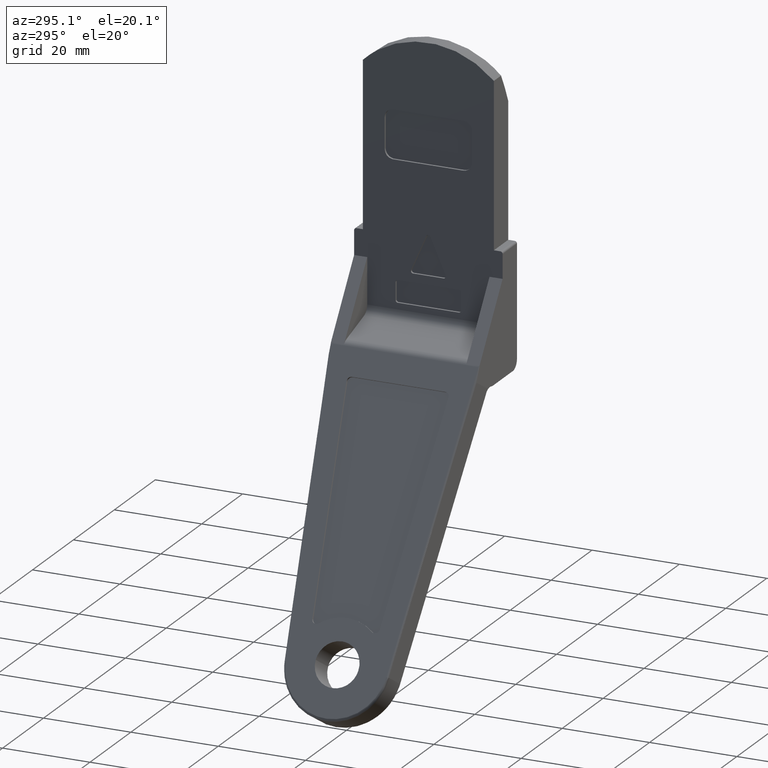
[diagram: clean part render]
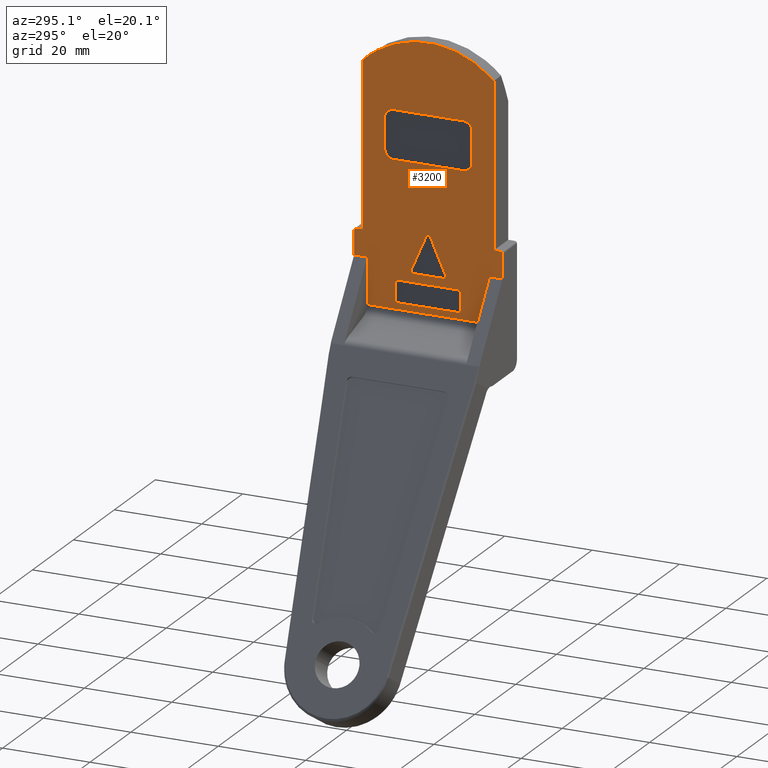
[diagram: same view with one face highlighted and labeled with its STEP entity id]
A machine part, auxiliary view. The second image highlights one B-rep face of the part: STEP entity #3200.
In plain terms, the highlighted face is a freeform B-spline surface patch.
Its self-contained STEP definition (entity closure, byte-faithful):
#973=CARTESIAN_POINT('',(0.0,16.500000000000000,-22.000000000000352));
#974=VERTEX_POINT('',#973);
#975=CARTESIAN_POINT('',(0.0,17.0,-22.500000000000352));
#976=VERTEX_POINT('',#975);
#977=CARTESIAN_POINT('',(0.0,16.500000000000000,-22.000000000000352));
#978=CARTESIAN_POINT('',(0.0,17.000000000000004,-22.000000000000345));
#979=CARTESIAN_POINT('',(0.0,17.0,-22.500000000000352));
#987=(BOUNDED_CURVE()B_SPLINE_CURVE(2,(#977,#978,#979),.UNSPECIFIED.,.F.,.U.)CURVE()GEOMETRIC_REPRESENTATION_ITEM()QUASI_UNIFORM_CURVE()RATIONAL_B_SPLINE_CURVE((1.0,0.707106781186548,1.0))REPRESENTATION_ITEM(''));
#988=EDGE_CURVE('',#974,#976,#987,.T.);
#1034=CARTESIAN_POINT('',(0.0,-17.0,-22.500000000000352));
#1035=VERTEX_POINT('',#1034);
#1036=CARTESIAN_POINT('',(0.0,-16.500000000000000,-22.000000000000352));
#1037=VERTEX_POINT('',#1036);
#1038=CARTESIAN_POINT('',(0.0,-17.0,-22.500000000000352));
#1039=CARTESIAN_POINT('',(0.0,-17.000000000000004,-22.000000000000345));
#1040=CARTESIAN_POINT('',(0.0,-16.500000000000000,-22.000000000000352));
#1048=(BOUNDED_CURVE()B_SPLINE_CURVE(2,(#1038,#1039,#1040),.UNSPECIFIED.,.F.,.U.)CURVE()GEOMETRIC_REPRESENTATION_ITEM()QUASI_UNIFORM_CURVE()RATIONAL_B_SPLINE_CURVE((1.0,0.707106781186548,1.0))REPRESENTATION_ITEM(''));
#1049=EDGE_CURVE('',#1035,#1037,#1048,.T.);
#1657=CARTESIAN_POINT('',(0.0,8.0,5.500000000108090));
#1658=VERTEX_POINT('',#1657);
#1659=CARTESIAN_POINT('',(0.0,10.0,3.500000000108085));
#1660=VERTEX_POINT('',#1659);
#1661=CARTESIAN_POINT('',(0.0,8.0,5.500000000108085));
#1662=CARTESIAN_POINT('',(0.0,10.000000000000002,5.500000000108086));
#1663=CARTESIAN_POINT('',(0.0,10.0,3.500000000108085));
#1671=(BOUNDED_CURVE()B_SPLINE_CURVE(2,(#1661,#1662,#1663),.UNSPECIFIED.,.F.,.U.)CURVE()GEOMETRIC_REPRESENTATION_ITEM()QUASI_UNIFORM_CURVE()RATIONAL_B_SPLINE_CURVE((1.0,0.707106781186548,1.0))REPRESENTATION_ITEM(''));
#1672=EDGE_CURVE('',#1658,#1660,#1671,.T.);
#1693=CARTESIAN_POINT('',(0.0,10.0,-3.499999999891915));
#1694=VERTEX_POINT('',#1693);
#1695=CARTESIAN_POINT('',(0.0,10.0,-3.499999999891915));
#1696=CARTESIAN_POINT('',(0.0,10.0,3.500000000108085));
#1697=QUASI_UNIFORM_CURVE('',1,(#1695,#1696),.UNSPECIFIED.,.F.,.U.);
#1698=EDGE_CURVE('',#1694,#1660,#1697,.T.);
#1724=CARTESIAN_POINT('',(0.0,8.0,-5.499999999891910));
#1725=VERTEX_POINT('',#1724);
#1726=CARTESIAN_POINT('',(0.0,10.0,-3.499999999891915));
#1727=CARTESIAN_POINT('',(0.0,10.000000000000002,-5.499999999891915));
#1728=CARTESIAN_POINT('',(0.0,8.0,-5.499999999891915));
#1736=(BOUNDED_CURVE()B_SPLINE_CURVE(2,(#1726,#1727,#1728),.UNSPECIFIED.,.F.,.U.)CURVE()GEOMETRIC_REPRESENTATION_ITEM()QUASI_UNIFORM_CURVE()RATIONAL_B_SPLINE_CURVE((1.0,0.707106781186548,1.0))REPRESENTATION_ITEM(''));
#1737=EDGE_CURVE('',#1694,#1725,#1736,.T.);
#1754=CARTESIAN_POINT('',(0.0,-8.0,-5.499999999891910));
#1755=VERTEX_POINT('',#1754);
#1756=CARTESIAN_POINT('',(0.0,-8.0,-5.499999999891910));
#1757=CARTESIAN_POINT('',(0.0,8.0,-5.499999999891910));
#1758=QUASI_UNIFORM_CURVE('',1,(#1756,#1757),.UNSPECIFIED.,.F.,.U.);
#1759=EDGE_CURVE('',#1755,#1725,#1758,.T.);
#1785=CARTESIAN_POINT('',(0.0,-10.0,-3.499999999891911));
#1786=VERTEX_POINT('',#1785);
#1787=CARTESIAN_POINT('',(0.0,-8.0,-5.499999999891911));
#1788=CARTESIAN_POINT('',(0.0,-10.000000000000002,-5.499999999891911));
#1789=CARTESIAN_POINT('',(0.0,-10.0,-3.499999999891911));
#1797=(BOUNDED_CURVE()B_SPLINE_CURVE(2,(#1787,#1788,#1789),.UNSPECIFIED.,.F.,.U.)CURVE()GEOMETRIC_REPRESENTATION_ITEM()QUASI_UNIFORM_CURVE()RATIONAL_B_SPLINE_CURVE((1.0,0.707106781186548,1.0))REPRESENTATION_ITEM(''));
#1798=EDGE_CURVE('',#1755,#1786,#1797,.T.);
#1815=CARTESIAN_POINT('',(0.0,-10.0,3.500000000108090));
#1816=VERTEX_POINT('',#1815);
#1817=CARTESIAN_POINT('',(0.0,-10.0,3.500000000108090));
#1818=CARTESIAN_POINT('',(0.0,-10.0,-3.499999999891911));
#1819=QUASI_UNIFORM_CURVE('',1,(#1817,#1818),.UNSPECIFIED.,.F.,.U.);
#1820=EDGE_CURVE('',#1816,#1786,#1819,.T.);
#1846=CARTESIAN_POINT('',(0.0,-8.0,5.500000000108090));
#1847=VERTEX_POINT('',#1846);
#1848=CARTESIAN_POINT('',(0.0,-10.0,3.500000000108090));
#1849=CARTESIAN_POINT('',(0.0,-10.000000000000002,5.500000000108090));
#1850=CARTESIAN_POINT('',(0.0,-8.0,5.500000000108090));
#1858=(BOUNDED_CURVE()B_SPLINE_CURVE(2,(#1848,#1849,#1850),.UNSPECIFIED.,.F.,.U.)CURVE()GEOMETRIC_REPRESENTATION_ITEM()QUASI_UNIFORM_CURVE()RATIONAL_B_SPLINE_CURVE((1.0,0.707106781186548,1.0))REPRESENTATION_ITEM(''));
#1859=EDGE_CURVE('',#1816,#1847,#1858,.T.);
#1876=CARTESIAN_POINT('',(0.0,8.0,5.500000000108090));
#1877=CARTESIAN_POINT('',(0.0,-8.0,5.500000000108090));
#1878=QUASI_UNIFORM_CURVE('',1,(#1876,#1877),.UNSPECIFIED.,.F.,.U.);
#1879=EDGE_CURVE('',#1658,#1847,#1878,.T.);
#1972=CARTESIAN_POINT('',(0.0,-3.958078667451120,-29.299590582882050));
#1973=VERTEX_POINT('',#1972);
#1974=CARTESIAN_POINT('',(0.0,-0.458078667451076,-21.299590582881901));
#1975=VERTEX_POINT('',#1974);
#1976=CARTESIAN_POINT('',(0.0,-3.958078667451120,-29.299590582882050));
#1977=CARTESIAN_POINT('',(0.0,-0.458078667451076,-21.299590582881901));
#1978=QUASI_UNIFORM_CURVE('',1,(#1976,#1977),.UNSPECIFIED.,.F.,.U.);
#1979=EDGE_CURVE('',#1973,#1975,#1978,.T.);
#2009=CARTESIAN_POINT('',(0.0,-3.500000000000000,-29.999999999891902));
#2010=VERTEX_POINT('',#2009);
#2011=CARTESIAN_POINT('',(0.0,-3.500000000000000,-29.999999999891902));
#2012=CARTESIAN_POINT('',(0.0,-3.770431827141985,-29.999999999891902));
#2013=CARTESIAN_POINT('',(0.0,-3.918452332114975,-29.773674342400550));
#2014=CARTESIAN_POINT('',(0.0,-4.066472837087964,-29.547348684909192));
#2015=CARTESIAN_POINT('',(0.0,-3.958078667451099,-29.299590582882061));
#2023=(BOUNDED_CURVE()B_SPLINE_CURVE(2,(#2011,#2012,#2013,#2014,#2015),.UNSPECIFIED.,.F.,.U.)B_SPLINE_CURVE_WITH_KNOTS((3,2,3),(0.0,0.500000000000000,1.0),.UNSPECIFIED.)CURVE()GEOMETRIC_REPRESENTATION_ITEM()RATIONAL_B_SPLINE_CURVE((1.0,0.879587597973417,1.0,0.879587597973417,1.0))REPRESENTATION_ITEM(''));
#2024=EDGE_CURVE('',#2010,#1973,#2023,.T.);
#2041=CARTESIAN_POINT('',(0.0,3.500000000000000,-29.999999999891902));
#2042=VERTEX_POINT('',#2041);
#2043=CARTESIAN_POINT('',(0.0,3.500000000000000,-29.999999999891902));
#2044=CARTESIAN_POINT('',(0.0,-3.500000000000000,-29.999999999891902));
#2045=QUASI_UNIFORM_CURVE('',1,(#2043,#2044),.UNSPECIFIED.,.F.,.U.);
#2046=EDGE_CURVE('',#2042,#2010,#2045,.T.);
#2072=CARTESIAN_POINT('',(0.0,3.958078667451105,-29.299590582881901));
#2073=VERTEX_POINT('',#2072);
#2074=CARTESIAN_POINT('',(0.0,3.958078667451042,-29.299590582881930));
#2075=CARTESIAN_POINT('',(0.0,4.066472837087996,-29.547348684909068));
#2076=CARTESIAN_POINT('',(0.0,3.918452332115014,-29.773674342400490));
#2077=CARTESIAN_POINT('',(0.0,3.770431827142031,-29.999999999891902));
#2078=CARTESIAN_POINT('',(0.0,3.500000000000000,-29.999999999891902));
#2086=(BOUNDED_CURVE()B_SPLINE_CURVE(2,(#2074,#2075,#2076,#2077,#2078),.UNSPECIFIED.,.F.,.U.)B_SPLINE_CURVE_WITH_KNOTS((3,2,3),(0.0,0.500000000000000,1.0),.UNSPECIFIED.)CURVE()GEOMETRIC_REPRESENTATION_ITEM()RATIONAL_B_SPLINE_CURVE((1.0,0.879587597973383,1.0,0.879587597973383,1.0))REPRESENTATION_ITEM(''));
#2087=EDGE_CURVE('',#2073,#2042,#2086,.T.);
#2104=CARTESIAN_POINT('',(0.0,0.458078667451162,-21.299590582882001));
#2105=VERTEX_POINT('',#2104);
#2106=CARTESIAN_POINT('',(0.0,0.458078667451162,-21.299590582882001));
#2107=CARTESIAN_POINT('',(0.0,3.958078667451105,-29.299590582881901));
#2108=QUASI_UNIFORM_CURVE('',1,(#2106,#2107),.UNSPECIFIED.,.F.,.U.);
#2109=EDGE_CURVE('',#2105,#2073,#2108,.T.);
#2139=CARTESIAN_POINT('',(0.0,-0.458078667451037,-21.299590582881919));
#2140=CARTESIAN_POINT('',(0.0,-0.327007787392786,-20.999999999891852));
#2141=CARTESIAN_POINT('',(0.0,6.322148E-014,-20.999999999891902));
#2142=CARTESIAN_POINT('',(0.0,0.327007787392912,-20.999999999891937));
#2143=CARTESIAN_POINT('',(0.0,0.458078667451088,-21.299590582882029));
#2151=(BOUNDED_CURVE()B_SPLINE_CURVE(2,(#2139,#2140,#2141,#2142,#2143),.UNSPECIFIED.,.F.,.U.)B_SPLINE_CURVE_WITH_KNOTS((3,2,3),(0.0,0.500000000000000,1.0),.UNSPECIFIED.)CURVE()GEOMETRIC_REPRESENTATION_ITEM()RATIONAL_B_SPLINE_CURVE((1.0,0.836904664229998,1.0,0.836904664229998,1.0))REPRESENTATION_ITEM(''));
#2152=EDGE_CURVE('',#1975,#2105,#2151,.T.);
#2270=CARTESIAN_POINT('',(0.0,-7.499999999983970,-32.499999999891898));
#2271=VERTEX_POINT('',#2270);
#2272=CARTESIAN_POINT('',(0.0,-6.999999999983970,-31.999999999891902));
#2273=VERTEX_POINT('',#2272);
#2274=CARTESIAN_POINT('',(0.0,-7.499999999983971,-32.499999999891898));
#2275=CARTESIAN_POINT('',(0.0,-7.499999999983974,-31.999999999891891));
#2276=CARTESIAN_POINT('',(0.0,-6.999999999983970,-31.999999999891902));
#2284=(BOUNDED_CURVE()B_SPLINE_CURVE(2,(#2274,#2275,#2276),.UNSPECIFIED.,.F.,.U.)CURVE()GEOMETRIC_REPRESENTATION_ITEM()QUASI_UNIFORM_CURVE()RATIONAL_B_SPLINE_CURVE((1.0,0.707106781186548,1.0))REPRESENTATION_ITEM(''));
#2285=EDGE_CURVE('',#2271,#2273,#2284,.T.);
#2306=CARTESIAN_POINT('',(0.0,-7.499999999983970,-36.499999999891912));
#2307=VERTEX_POINT('',#2306);
#2308=CARTESIAN_POINT('',(0.0,-7.499999999983970,-36.499999999891912));
#2309=CARTESIAN_POINT('',(0.0,-7.499999999983970,-32.499999999891898));
#2310=QUASI_UNIFORM_CURVE('',1,(#2308,#2309),.UNSPECIFIED.,.F.,.U.);
#2311=EDGE_CURVE('',#2307,#2271,#2310,.T.);
#2337=CARTESIAN_POINT('',(0.0,-6.999999999983970,-36.999999999891898));
#2338=VERTEX_POINT('',#2337);
#2339=CARTESIAN_POINT('',(0.0,-6.999999999983970,-36.999999999891912));
#2340=CARTESIAN_POINT('',(0.0,-7.499999999983974,-36.999999999891912));
#2341=CARTESIAN_POINT('',(0.0,-7.499999999983971,-36.499999999891912));
#2349=(BOUNDED_CURVE()B_SPLINE_CURVE(2,(#2339,#2340,#2341),.UNSPECIFIED.,.F.,.U.)CURVE()GEOMETRIC_REPRESENTATION_ITEM()QUASI_UNIFORM_CURVE()RATIONAL_B_SPLINE_CURVE((1.0,0.707106781186548,1.0))REPRESENTATION_ITEM(''));
#2350=EDGE_CURVE('',#2338,#2307,#2349,.T.);
#2367=CARTESIAN_POINT('',(0.0,7.000000000016060,-36.999999999891898));
#2368=VERTEX_POINT('',#2367);
#2369=CARTESIAN_POINT('',(0.0,7.000000000016060,-36.999999999891898));
#2370=CARTESIAN_POINT('',(0.0,-6.999999999983970,-36.999999999891898));
#2371=QUASI_UNIFORM_CURVE('',1,(#2369,#2370),.UNSPECIFIED.,.F.,.U.);
#2372=EDGE_CURVE('',#2368,#2338,#2371,.T.);
#2398=CARTESIAN_POINT('',(0.0,7.500000000016060,-36.499999999891912));
#2399=VERTEX_POINT('',#2398);
#2400=CARTESIAN_POINT('',(0.0,7.500000000016060,-36.499999999891912));
#2401=CARTESIAN_POINT('',(0.0,7.500000000016061,-36.999999999891912));
#2402=CARTESIAN_POINT('',(0.0,7.000000000016060,-36.999999999891912));
#2410=(BOUNDED_CURVE()B_SPLINE_CURVE(2,(#2400,#2401,#2402),.UNSPECIFIED.,.F.,.U.)CURVE()GEOMETRIC_REPRESENTATION_ITEM()QUASI_UNIFORM_CURVE()RATIONAL_B_SPLINE_CURVE((1.0,0.707106781186548,1.0))REPRESENTATION_ITEM(''));
#2411=EDGE_CURVE('',#2399,#2368,#2410,.T.);
#2428=CARTESIAN_POINT('',(0.0,7.500000000016060,-32.499999999891898));
#2429=VERTEX_POINT('',#2428);
#2430=CARTESIAN_POINT('',(0.0,7.500000000016060,-32.499999999891898));
#2431=CARTESIAN_POINT('',(0.0,7.500000000016060,-36.499999999891912));
#2432=QUASI_UNIFORM_CURVE('',1,(#2430,#2431),.UNSPECIFIED.,.F.,.U.);
#2433=EDGE_CURVE('',#2429,#2399,#2432,.T.);
#2459=CARTESIAN_POINT('',(0.0,7.000000000016060,-31.999999999891902));
#2460=VERTEX_POINT('',#2459);
#2461=CARTESIAN_POINT('',(0.0,7.000000000016060,-31.999999999891902));
#2462=CARTESIAN_POINT('',(0.0,7.500000000016061,-31.999999999891891));
#2463=CARTESIAN_POINT('',(0.0,7.500000000016060,-32.499999999891898));
#2471=(BOUNDED_CURVE()B_SPLINE_CURVE(2,(#2461,#2462,#2463),.UNSPECIFIED.,.F.,.U.)CURVE()GEOMETRIC_REPRESENTATION_ITEM()QUASI_UNIFORM_CURVE()RATIONAL_B_SPLINE_CURVE((1.0,0.707106781186548,1.0))REPRESENTATION_ITEM(''));
#2472=EDGE_CURVE('',#2460,#2429,#2471,.T.);
#2489=CARTESIAN_POINT('',(0.0,-6.999999999983970,-31.999999999891902));
#2490=CARTESIAN_POINT('',(0.0,7.000000000016060,-31.999999999891902));
#2491=QUASI_UNIFORM_CURVE('',1,(#2489,#2490),.UNSPECIFIED.,.F.,.U.);
#2492=EDGE_CURVE('',#2273,#2460,#2491,.T.);
#2507=CARTESIAN_POINT('',(0.0,-14.0,-27.999999999798298));
#2508=VERTEX_POINT('',#2507);
#2514=CARTESIAN_POINT('',(0.0,-14.0,-38.470898426035099));
#2515=VERTEX_POINT('',#2514);
#2516=CARTESIAN_POINT('',(0.0,-14.0,-27.999999999798298));
#2517=CARTESIAN_POINT('',(0.0,-14.0,-38.470898426035099));
#2518=QUASI_UNIFORM_CURVE('',1,(#2516,#2517),.UNSPECIFIED.,.F.,.U.);
#2519=EDGE_CURVE('',#2508,#2515,#2518,.T.);
#2566=CARTESIAN_POINT('',(0.0,14.0,-27.999999999798298));
#2567=VERTEX_POINT('',#2566);
#2595=CARTESIAN_POINT('',(0.0,14.0,-38.470898426035099));
#2596=VERTEX_POINT('',#2595);
#2610=CARTESIAN_POINT('',(0.0,14.0,-27.999999999798298));
#2611=CARTESIAN_POINT('',(0.0,14.0,-38.470898426035099));
#2612=QUASI_UNIFORM_CURVE('',1,(#2610,#2611),.UNSPECIFIED.,.F.,.U.);
#2613=EDGE_CURVE('',#2567,#2596,#2612,.T.);
#2653=CARTESIAN_POINT('',(0.0,14.0,-38.470898426035099));
#2654=CARTESIAN_POINT('',(0.0,-14.0,-38.470898426035099));
#2655=QUASI_UNIFORM_CURVE('',1,(#2653,#2654),.UNSPECIFIED.,.F.,.U.);
#2656=EDGE_CURVE('',#2596,#2515,#2655,.T.);
#2698=CARTESIAN_POINT('',(1.858780E-011,-17.0,-27.999999999798298));
#2699=VERTEX_POINT('',#2698);
#2700=CARTESIAN_POINT('',(1.858780E-011,-17.0,-27.999999999798298));
#2701=CARTESIAN_POINT('',(0.0,-17.0,-22.500000000000352));
#2702=QUASI_UNIFORM_CURVE('',1,(#2700,#2701),.UNSPECIFIED.,.F.,.U.);
#2703=EDGE_CURVE('',#2699,#1035,#2702,.T.);
#2729=CARTESIAN_POINT('',(1.858780E-011,17.0,-27.999999999798298));
#2730=VERTEX_POINT('',#2729);
#2736=CARTESIAN_POINT('',(1.858780E-011,17.0,-27.999999999798298));
#2737=CARTESIAN_POINT('',(0.0,17.0,-22.500000000000352));
#2738=QUASI_UNIFORM_CURVE('',1,(#2736,#2737),.UNSPECIFIED.,.F.,.U.);
#2739=EDGE_CURVE('',#2730,#976,#2738,.T.);
#2777=CARTESIAN_POINT('',(0.0,-14.0,-27.999999999798298));
#2778=CARTESIAN_POINT('',(1.858780E-011,-17.0,-27.999999999798298));
#2779=QUASI_UNIFORM_CURVE('',1,(#2777,#2778),.UNSPECIFIED.,.F.,.U.);
#2780=EDGE_CURVE('',#2508,#2699,#2779,.T.);
#2903=CARTESIAN_POINT('',(0.0,15.0,-21.999999999891902));
#2904=VERTEX_POINT('',#2903);
#2905=CARTESIAN_POINT('',(0.0,16.500000000000000,-22.000000000000352));
#2906=CARTESIAN_POINT('',(0.0,15.0,-21.999999999891902));
#2907=QUASI_UNIFORM_CURVE('',1,(#2905,#2906),.UNSPECIFIED.,.F.,.U.);
#2908=EDGE_CURVE('',#974,#2904,#2907,.T.);
#2923=CARTESIAN_POINT('',(0.0,-15.0,-22.000000000000352));
#2924=VERTEX_POINT('',#2923);
#2925=CARTESIAN_POINT('',(0.0,-15.0,-22.000000000000352));
#2926=CARTESIAN_POINT('',(0.0,-16.500000000000000,-22.000000000000352));
#2927=QUASI_UNIFORM_CURVE('',1,(#2925,#2926),.UNSPECIFIED.,.F.,.U.);
#2928=EDGE_CURVE('',#2924,#1037,#2927,.T.);
#3062=CARTESIAN_POINT('',(0.0,-15.0,15.402921800857500));
#3063=VERTEX_POINT('',#3062);
#3069=CARTESIAN_POINT('',(0.0,-15.0,15.402921800857500));
#3070=CARTESIAN_POINT('',(0.0,-15.0,-22.000000000000352));
#3071=QUASI_UNIFORM_CURVE('',1,(#3069,#3070),.UNSPECIFIED.,.F.,.U.);
#3072=EDGE_CURVE('',#3063,#2924,#3071,.T.);
#3083=CARTESIAN_POINT('',(0.0,15.0,15.402921800857500));
#3084=VERTEX_POINT('',#3083);
#3093=CARTESIAN_POINT('',(0.0,15.0,-21.999999999891902));
#3094=CARTESIAN_POINT('',(0.0,15.0,15.402921800857500));
#3095=QUASI_UNIFORM_CURVE('',1,(#3093,#3094),.UNSPECIFIED.,.F.,.U.);
#3096=EDGE_CURVE('',#2904,#3084,#3095,.T.);
#3117=CARTESIAN_POINT('',(0.0,-14.999999999999970,15.402921800857470));
#3118=CARTESIAN_POINT('',(0.0,-5.204170E-015,30.010539946984295));
#3119=CARTESIAN_POINT('',(0.0,15.0,15.402921800857500));
#3127=(BOUNDED_CURVE()B_SPLINE_CURVE(2,(#3117,#3118,#3119),.UNSPECIFIED.,.F.,.U.)CURVE()GEOMETRIC_REPRESENTATION_ITEM()QUASI_UNIFORM_CURVE()RATIONAL_B_SPLINE_CURVE((1.0,0.716414967476716,1.0))REPRESENTATION_ITEM(''));
#3128=EDGE_CURVE('',#3063,#3084,#3127,.T.);
#3143=CARTESIAN_POINT('',(1.858780E-011,17.0,-27.999999999798298));
#3144=CARTESIAN_POINT('',(0.0,14.0,-27.999999999798298));
#3145=QUASI_UNIFORM_CURVE('',1,(#3143,#3144),.UNSPECIFIED.,.F.,.U.);
#3146=EDGE_CURVE('',#2730,#2567,#3145,.T.);
#3151=CARTESIAN_POINT('',(0.0,18.698299934101399,24.495546046000399));
#3152=CARTESIAN_POINT('',(0.0,-18.698300846052469,24.495546046000399));
#3153=CARTESIAN_POINT('',(0.0,18.698299934101399,-41.466441791019470));
#3154=CARTESIAN_POINT('',(0.0,-18.698300846052469,-41.466441791019470));
#3155=B_SPLINE_SURFACE_WITH_KNOTS('',1,1,((#3151,#3153),(#3152,#3154)),.UNSPECIFIED.,.F.,.F.,.U.,(2,2),(2,2),(0.0,37.396600780153868),(0.0,65.961987837019862),.UNSPECIFIED.);
#3156=ORIENTED_EDGE('',*,*,#2703,.T.);
#3157=ORIENTED_EDGE('',*,*,#1049,.T.);
#3158=ORIENTED_EDGE('',*,*,#2928,.F.);
#3159=ORIENTED_EDGE('',*,*,#3072,.F.);
#3160=ORIENTED_EDGE('',*,*,#3128,.T.);
#3161=ORIENTED_EDGE('',*,*,#3096,.F.);
#3162=ORIENTED_EDGE('',*,*,#2908,.F.);
#3163=ORIENTED_EDGE('',*,*,#988,.T.);
#3164=ORIENTED_EDGE('',*,*,#2739,.F.);
#3165=ORIENTED_EDGE('',*,*,#3146,.T.);
#3166=ORIENTED_EDGE('',*,*,#2613,.T.);
#3167=ORIENTED_EDGE('',*,*,#2656,.T.);
#3168=ORIENTED_EDGE('',*,*,#2519,.F.);
#3169=ORIENTED_EDGE('',*,*,#2780,.T.);
#3170=EDGE_LOOP('',(#3156,#3157,#3158,#3159,#3160,#3161,#3162,#3163,#3164,#3165,#3166,#3167,#3168,#3169));
#3171=FACE_OUTER_BOUND('',#3170,.T.);
#3172=ORIENTED_EDGE('',*,*,#2492,.F.);
#3173=ORIENTED_EDGE('',*,*,#2285,.F.);
#3174=ORIENTED_EDGE('',*,*,#2311,.F.);
#3175=ORIENTED_EDGE('',*,*,#2350,.F.);
#3176=ORIENTED_EDGE('',*,*,#2372,.F.);
#3177=ORIENTED_EDGE('',*,*,#2411,.F.);
#3178=ORIENTED_EDGE('',*,*,#2433,.F.);
#3179=ORIENTED_EDGE('',*,*,#2472,.F.);
#3180=EDGE_LOOP('',(#3172,#3173,#3174,#3175,#3176,#3177,#3178,#3179));
#3181=FACE_BOUND('',#3180,.T.);
#3182=ORIENTED_EDGE('',*,*,#2152,.F.);
#3183=ORIENTED_EDGE('',*,*,#1979,.F.);
#3184=ORIENTED_EDGE('',*,*,#2024,.F.);
#3185=ORIENTED_EDGE('',*,*,#2046,.F.);
#3186=ORIENTED_EDGE('',*,*,#2087,.F.);
#3187=ORIENTED_EDGE('',*,*,#2109,.F.);
#3188=EDGE_LOOP('',(#3182,#3183,#3184,#3185,#3186,#3187));
#3189=FACE_BOUND('',#3188,.T.);
#3190=ORIENTED_EDGE('',*,*,#1672,.F.);
#3191=ORIENTED_EDGE('',*,*,#1879,.T.);
#3192=ORIENTED_EDGE('',*,*,#1859,.F.);
#3193=ORIENTED_EDGE('',*,*,#1820,.T.);
#3194=ORIENTED_EDGE('',*,*,#1798,.F.);
#3195=ORIENTED_EDGE('',*,*,#1759,.T.);
#3196=ORIENTED_EDGE('',*,*,#1737,.F.);
#3197=ORIENTED_EDGE('',*,*,#1698,.T.);
#3198=EDGE_LOOP('',(#3190,#3191,#3192,#3193,#3194,#3195,#3196,#3197));
#3199=FACE_BOUND('',#3198,.T.);
#3200=ADVANCED_FACE('',(#3171,#3181,#3189,#3199),#3155,.F.);